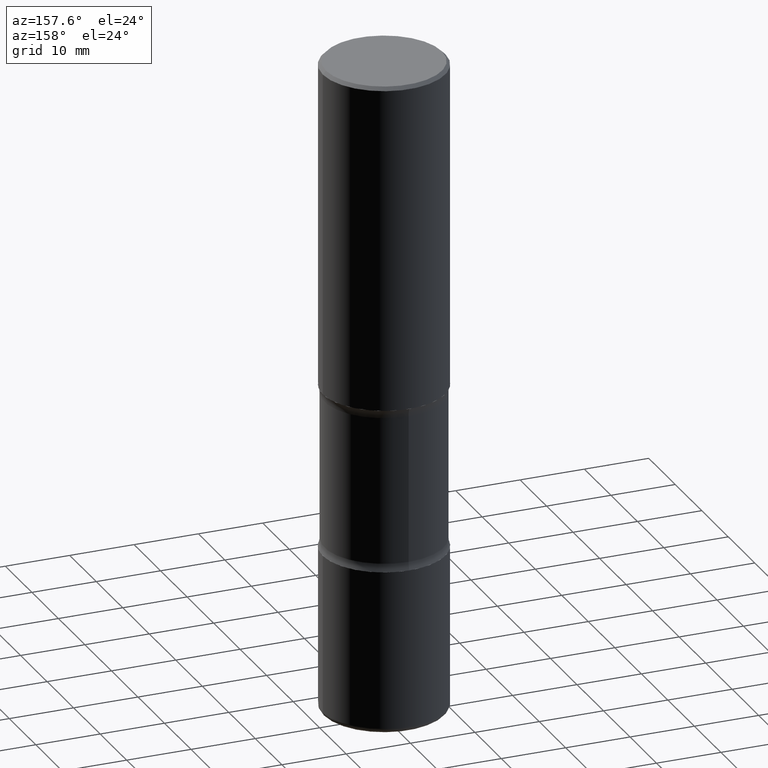
[diagram: clean part render]
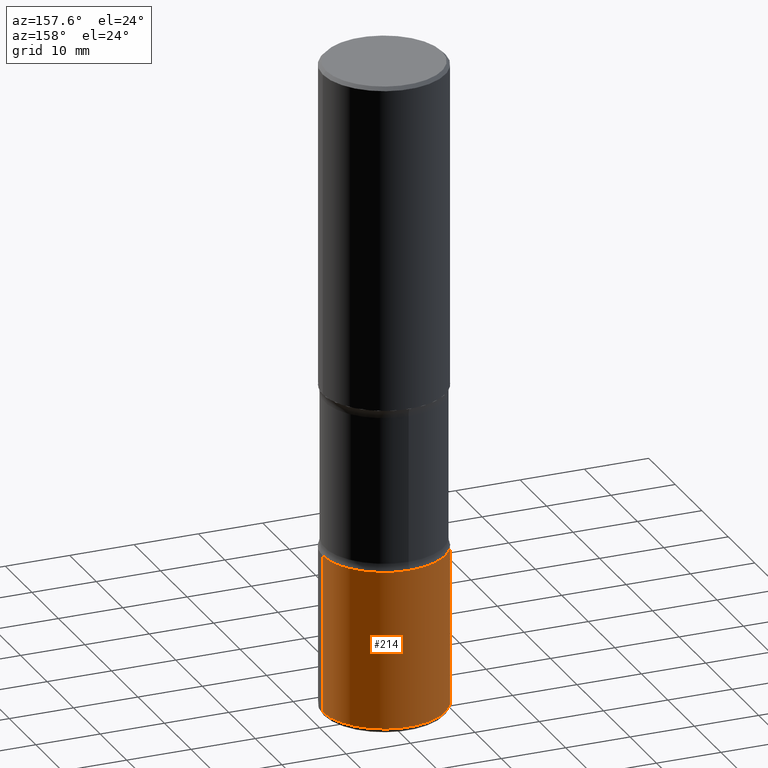
[diagram: same view with one face highlighted and labeled with its STEP entity id]
A machine part, auxiliary view. The second image highlights one B-rep face of the part: STEP entity #214.
In plain terms, the highlighted cylindrical surface (partial cylindrical patch) has radius 9.525 mm, axis along (-0, 0, 1).
Its self-contained STEP definition (entity closure, byte-faithful):
#9 = CARTESIAN_POINT ( 'NONE',  ( 0.000000000000000000, 0.000000000000000000, 0.000000000000000000 ) ) ;
#11 = AXIS2_PLACEMENT_3D ( 'NONE', #34, #66, #552 ) ;
#24 = VERTEX_POINT ( 'NONE', #383 ) ;
#34 = CARTESIAN_POINT ( 'NONE',  ( 9.708511160554990630E-29, -1.386118091520728581E-14, -3.969999999999999307 ) ) ;
#62 = FACE_OUTER_BOUND ( 'NONE', #162, .T. ) ;
#66 = DIRECTION ( 'NONE',  ( -2.445468806185136597E-29, 3.491481338843145583E-15, 1.000000000000000000 ) ) ;
#98 = DIRECTION ( 'NONE',  ( -2.445468806185136877E-29, 3.491481338843145188E-15, 1.000000000000000000 ) ) ;
#104 = CARTESIAN_POINT ( 'NONE',  ( 0.3750000000000009437, -1.647979191933964371E-14, -3.969999999999999307 ) ) ;
#128 = AXIS2_PLACEMENT_3D ( 'NONE', #9, #185, #486 ) ;
#141 = EDGE_CURVE ( 'NONE', #24, #490, #481, .T. ) ;
#162 = EDGE_LOOP ( 'NONE', ( #397, #535, #201, #204 ) ) ;
#167 = CIRCLE ( 'NONE', #11, 0.3750000000000007772 ) ;
#173 = CARTESIAN_POINT ( 'NONE',  ( 0.3750000000000007772, -1.309305502066178953E-14, -2.999999999999999112 ) ) ;
#175 = VECTOR ( 'NONE', #98, 39.37007874015748143 ) ;
#185 = DIRECTION ( 'NONE',  ( -2.445468806185136597E-29, 3.491481338843145583E-15, 1.000000000000000000 ) ) ;
#201 = ORIENTED_EDGE ( 'NONE', *, *, #346, .F. ) ;
#204 = ORIENTED_EDGE ( 'NONE', *, *, #220, .F. ) ;
#207 = VECTOR ( 'NONE', #216, 39.37007874015748143 ) ;
#214 = ADVANCED_FACE ( 'NONE', ( #62 ), #262, .T. ) ;
#216 = DIRECTION ( 'NONE',  ( -2.445468806185136877E-29, 3.491481338843145188E-15, 1.000000000000000000 ) ) ;
#220 = EDGE_CURVE ( 'NONE', #222, #465, #398, .T. ) ;
#222 = VERTEX_POINT ( 'NONE', #104 ) ;
#228 = AXIS2_PLACEMENT_3D ( 'NONE', #238, #540, #447 ) ;
#238 = CARTESIAN_POINT ( 'NONE',  ( 7.336406418555407548E-29, -1.047444401652943320E-14, -2.999999999999999112 ) ) ;
#262 = CYLINDRICAL_SURFACE ( 'NONE', #128, 0.3750000000000007772 ) ;
#292 = CARTESIAN_POINT ( 'NONE',  ( -0.3750000000000007772, -9.503277206767979072E-15, -2.999999999999999112 ) ) ;
#321 = CIRCLE ( 'NONE', #228, 0.3750000000000007772 ) ;
#336 = EDGE_CURVE ( 'NONE', #222, #24, #167, .T. ) ;
#346 = EDGE_CURVE ( 'NONE', #465, #490, #321, .T. ) ;
#352 = CARTESIAN_POINT ( 'NONE',  ( 0.3750000000000007772, -2.618611004132355538E-15, 1.828566290923479846E-29 ) ) ;
#383 = CARTESIAN_POINT ( 'NONE',  ( -0.3750000000000009437, -1.119664565610690538E-14, -3.969999999999999307 ) ) ;
#397 = ORIENTED_EDGE ( 'NONE', *, *, #336, .T. ) ;
#398 = LINE ( 'NONE', #352, #175 ) ;
#447 = DIRECTION ( 'NONE',  ( 1.000000000000000000, -6.982962677686269077E-15, 0.000000000000000000 ) ) ;
#465 = VERTEX_POINT ( 'NONE', #173 ) ;
#481 = LINE ( 'NONE', #488, #207 ) ;
#486 = DIRECTION ( 'NONE',  ( 1.000000000000000000, -6.982962677686266711E-15, 4.876176775795936353E-29 ) ) ;
#488 = CARTESIAN_POINT ( 'NONE',  ( -0.3750000000000007772, 2.664535259100381219E-15, -1.844600658845593522E-29 ) ) ;
#490 = VERTEX_POINT ( 'NONE', #292 ) ;
#535 = ORIENTED_EDGE ( 'NONE', *, *, #141, .T. ) ;
#540 = DIRECTION ( 'NONE',  ( -2.445468806185136597E-29, 3.491481338843145583E-15, 1.000000000000000000 ) ) ;
#552 = DIRECTION ( 'NONE',  ( 1.000000000000000000, -6.982962677686263555E-15, 0.000000000000000000 ) ) ;